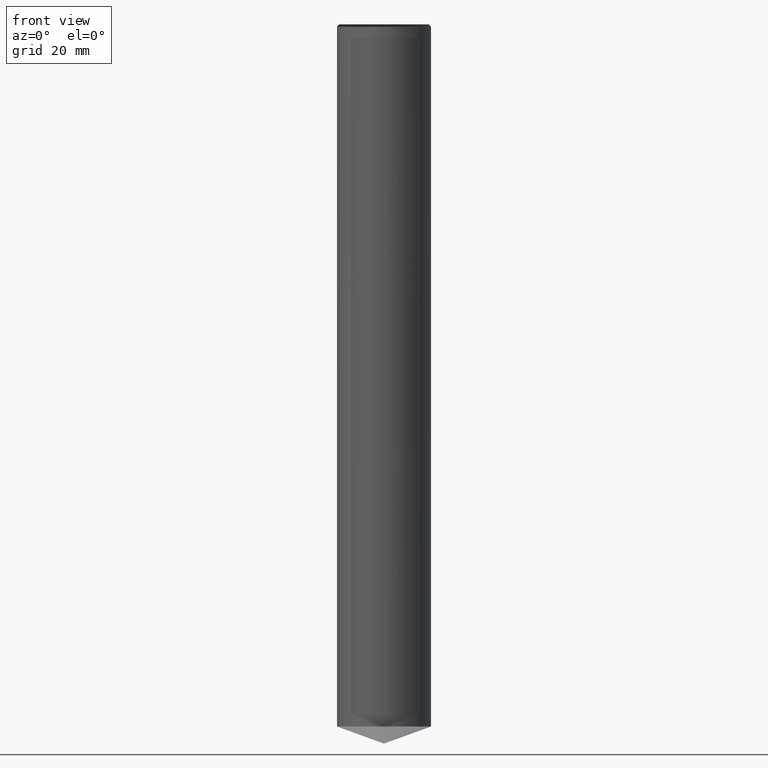
[diagram: clean part render]
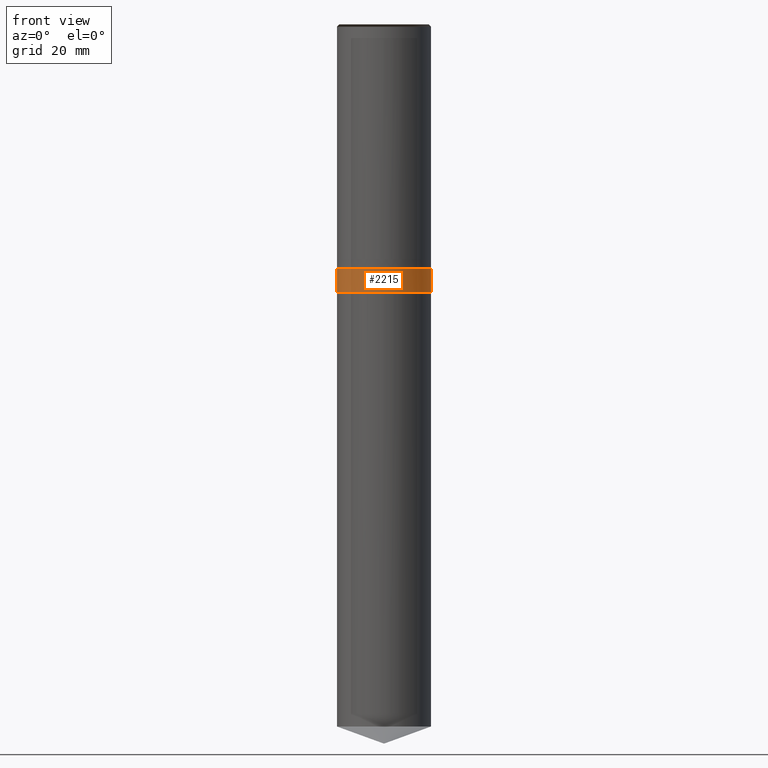
[diagram: same view with one face highlighted and labeled with its STEP entity id]
A machine part, front view. The second image highlights one B-rep face of the part: STEP entity #2215.
In plain terms, the highlighted face is a freeform B-spline surface patch.
Its self-contained STEP definition (entity closure, byte-faithful):
#1910=CARTESIAN_POINT('',(10.0,0.0,-7.0));
#1914=CARTESIAN_POINT('',(-10.0,0.0,-7.0));
#1919=CARTESIAN_POINT('',(-10.0,-10.0,-7.0));
#1920=CARTESIAN_POINT('',(0.0,-10.0,-7.0));
#1921=CARTESIAN_POINT('',(10.0,-10.0,-7.0));
#1922=CARTESIAN_POINT('',(10.0,0.0,-2.0));
#1926=CARTESIAN_POINT('',(-10.0,0.0,-2.0));
#1943=CARTESIAN_POINT('',(-10.0,-10.0,-2.0));
#1944=CARTESIAN_POINT('',(0.0,-10.0,-2.0));
#1945=CARTESIAN_POINT('',(10.0,-10.0,-2.0));
#2196=(
BOUNDED_SURFACE()
B_SPLINE_SURFACE(1,2,(
(#1914,#1919,#1920,#1921,#1910),
(#1926,#1943,#1944,#1945,#1922)
), .UNSPECIFIED.,.F.,.F.,.F.)
B_SPLINE_SURFACE_WITH_KNOTS((2,2),(3,2,3),(
0.0,1.0),(
0.0,0.5,1.0), .UNSPECIFIED.)
GEOMETRIC_REPRESENTATION_ITEM()
RATIONAL_B_SPLINE_SURFACE(((1.0,0.707106781187,1.0,0.707106781187,1.0),
(1.0,0.707106781187,1.0,0.707106781187,1.0)
))
REPRESENTATION_ITEM('')
SURFACE()
);
#2197=(
BOUNDED_CURVE()
B_SPLINE_CURVE(2,(#1910,#1921,#1920,#1919,#1914),.UNSPECIFIED.,.F.,.F.)
B_SPLINE_CURVE_WITH_KNOTS((3,2,3),
(0.0,0.5,1.0),.UNSPECIFIED.)
CURVE()
GEOMETRIC_REPRESENTATION_ITEM()
RATIONAL_B_SPLINE_CURVE((1.0,0.707106781187,1.0,0.707106781187,1.0))
REPRESENTATION_ITEM('')
);
#2198=(
BOUNDED_CURVE()
B_SPLINE_CURVE(1,(#1914,#1926),.UNSPECIFIED.,.F.,.F.)
B_SPLINE_CURVE_WITH_KNOTS((2,2),
(0.0,1.0),.UNSPECIFIED.)
CURVE()
GEOMETRIC_REPRESENTATION_ITEM()
RATIONAL_B_SPLINE_CURVE((1.0,1.0))
REPRESENTATION_ITEM('')
);
#2199=(
BOUNDED_CURVE()
B_SPLINE_CURVE(2,(#1926,#1943,#1944,#1945,#1922),.UNSPECIFIED.,.F.,.F.)
B_SPLINE_CURVE_WITH_KNOTS((3,2,3),
(0.0,0.5,1.0),.UNSPECIFIED.)
CURVE()
GEOMETRIC_REPRESENTATION_ITEM()
RATIONAL_B_SPLINE_CURVE((1.0,0.707106781187,1.0,0.707106781187,1.0))
REPRESENTATION_ITEM('')
);
#2200=(
BOUNDED_CURVE()
B_SPLINE_CURVE(1,(#1922,#1910),.UNSPECIFIED.,.F.,.F.)
B_SPLINE_CURVE_WITH_KNOTS((2,2),
(0.0,1.0),.UNSPECIFIED.)
CURVE()
GEOMETRIC_REPRESENTATION_ITEM()
RATIONAL_B_SPLINE_CURVE((1.0,1.0))
REPRESENTATION_ITEM('')
);
#2201=VERTEX_POINT('',#1910);
#2202=VERTEX_POINT('',#1914);
#2203=VERTEX_POINT('',#1922);
#2204=VERTEX_POINT('',#1926);
#2205=EDGE_CURVE('',#2201,#2202,#2197,.T.);
#2206=EDGE_CURVE('',#2202,#2204,#2198,.T.);
#2207=EDGE_CURVE('',#2204,#2203,#2199,.T.);
#2208=EDGE_CURVE('',#2203,#2201,#2200,.T.);
#2209=ORIENTED_EDGE('',*,*,#2205,.T.);
#2210=ORIENTED_EDGE('',*,*,#2206,.T.);
#2211=ORIENTED_EDGE('',*,*,#2207,.T.);
#2212=ORIENTED_EDGE('',*,*,#2208,.T.);
#2213=EDGE_LOOP('',(#2209,#2210,#2211,#2212));
#2214=FACE_OUTER_BOUND('',#2213,.T.);
#2215=ADVANCED_FACE('',(#2214),#2196,.T.);